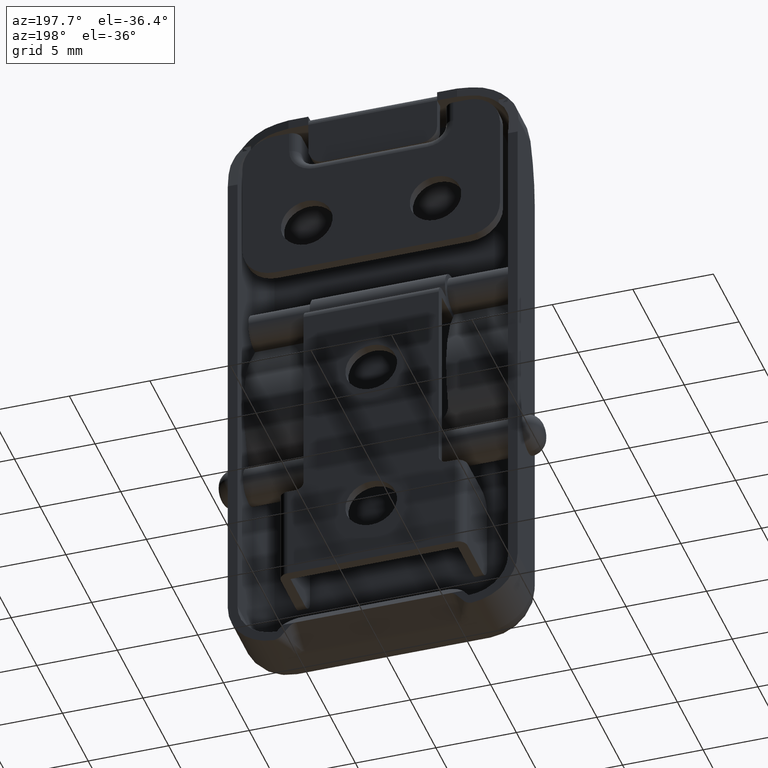
[diagram: clean part render]
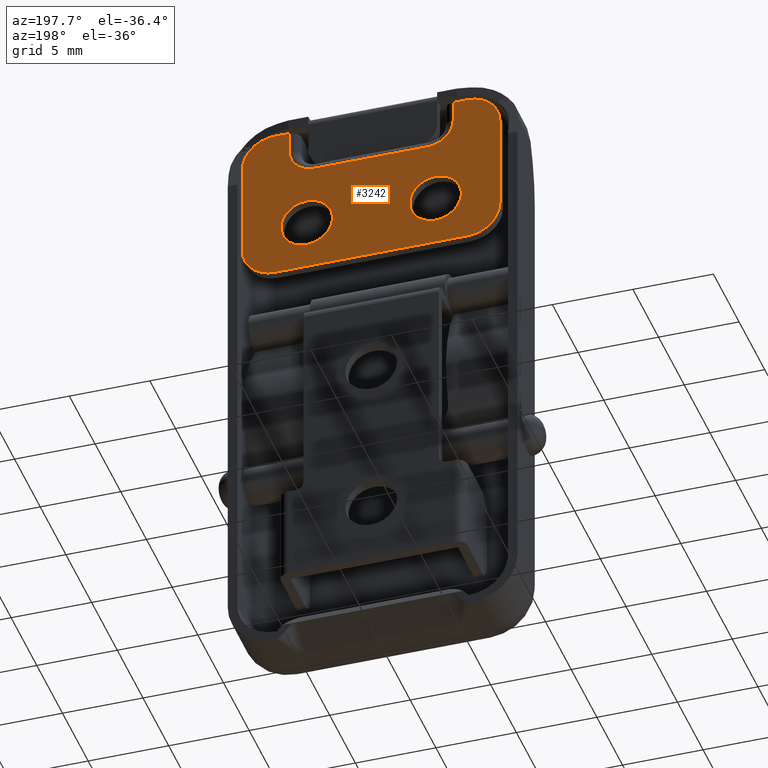
[diagram: same view with one face highlighted and labeled with its STEP entity id]
A machine part, auxiliary view. The second image highlights one B-rep face of the part: STEP entity #3242.
In plain terms, the highlighted planar face has unit normal (0, 1, 0).
Its self-contained STEP definition (entity closure, byte-faithful):
#69 = CARTESIAN_POINT ( 'NONE',  ( 5.100000999999910100, 2.600000000000134600, 12.30695863584754000 ) ) ;
#73 = PLANE ( 'NONE',  #3476 ) ;
#87 = CARTESIAN_POINT ( 'NONE',  ( 9.999999086574009500E-007, 2.600000000000134600, 12.30695863584754000 ) ) ;
#154 = VERTEX_POINT ( 'NONE', #5517 ) ;
#234 = DIRECTION ( 'NONE',  ( 1.000000000000000000, 0.0000000000000000000, 0.0000000000000000000 ) ) ;
#246 = DIRECTION ( 'NONE',  ( -0.0000000000000000000, -1.000000000000000000, -0.0000000000000000000 ) ) ;
#338 = EDGE_LOOP ( 'NONE', ( #664, #3043, #3142, #359, #2130, #1480, #1949, #3622, #1924, #2792, #1191, #929, #2126, #2972 ) ) ;
#359 = ORIENTED_EDGE ( 'NONE', *, *, #4026, .T. ) ;
#378 = CIRCLE ( 'NONE', #2049, 1.599999999999999900 ) ;
#420 = DIRECTION ( 'NONE',  ( 0.0000000000000000000, 0.0000000000000000000, 1.000000000000000000 ) ) ;
#452 = FACE_BOUND ( 'NONE', #2769, .T. ) ;
#460 = VECTOR ( 'NONE', #3025, 1000.000000000000000 ) ;
#472 = LINE ( 'NONE', #3707, #1628 ) ;
#483 = VERTEX_POINT ( 'NONE', #617 ) ;
#559 = VERTEX_POINT ( 'NONE', #1184 ) ;
#565 = VERTEX_POINT ( 'NONE', #5624 ) ;
#617 = CARTESIAN_POINT ( 'NONE',  ( -5.999999000000089600, 2.600000000000164800, 2.306958635847545100 ) ) ;
#635 = EDGE_CURVE ( 'NONE', #2367, #5051, #472, .T. ) ;
#653 = CARTESIAN_POINT ( 'NONE',  ( 5.100000999999910100, 2.600000000000134600, 11.00695863585086100 ) ) ;
#655 = CIRCLE ( 'NONE', #2022, 1.600000000000000800 ) ;
#664 = ORIENTED_EDGE ( 'NONE', *, *, #635, .F. ) ;
#673 = CIRCLE ( 'NONE', #5569, 2.000000000000000000 ) ;
#706 = DIRECTION ( 'NONE',  ( 1.000000000000000000, -0.0000000000000000000, -0.0000000000000000000 ) ) ;
#723 = CARTESIAN_POINT ( 'NONE',  ( 9.999999086574009500E-007, 2.600000000000164800, 2.306958635847545100 ) ) ;
#730 = CARTESIAN_POINT ( 'NONE',  ( 3.500000999999910000, 2.600000000000134600, 11.00695863585086100 ) ) ;
#781 = VERTEX_POINT ( 'NONE', #2172 ) ;
#929 = ORIENTED_EDGE ( 'NONE', *, *, #1084, .T. ) ;
#973 = EDGE_CURVE ( 'NONE', #3558, #154, #5868, .T. ) ;
#1084 = EDGE_CURVE ( 'NONE', #1896, #1460, #3924, .T. ) ;
#1181 = EDGE_CURVE ( 'NONE', #483, #1907, #2311, .T. ) ;
#1184 = CARTESIAN_POINT ( 'NONE',  ( -7.999999000000091300, 2.600000000000164800, 10.30695863584754000 ) ) ;
#1189 = CARTESIAN_POINT ( 'NONE',  ( 9.999999086574009500E-007, 2.600000000000134600, 12.30695863584754000 ) ) ;
#1191 = ORIENTED_EDGE ( 'NONE', *, *, #5925, .T. ) ;
#1227 = DIRECTION ( 'NONE',  ( 0.0000000000000000000, 0.0000000000000000000, 1.000000000000000000 ) ) ;
#1249 = EDGE_LOOP ( 'NONE', ( #3525, #3606 ) ) ;
#1300 = LINE ( 'NONE', #5656, #1454 ) ;
#1302 = CARTESIAN_POINT ( 'NONE',  ( -5.999999000000089600, 2.600000000001385200, 10.30695863584754000 ) ) ;
#1338 = VERTEX_POINT ( 'NONE', #2631 ) ;
#1349 = AXIS2_PLACEMENT_3D ( 'NONE', #1302, #4746, #1805 ) ;
#1452 = DIRECTION ( 'NONE',  ( -0.0000000000000000000, -0.0000000000000000000, -1.000000000000000000 ) ) ;
#1454 = VECTOR ( 'NONE', #2209, 1000.000000000000000 ) ;
#1460 = VERTEX_POINT ( 'NONE', #69 ) ;
#1480 = ORIENTED_EDGE ( 'NONE', *, *, #6321, .T. ) ;
#1575 = EDGE_CURVE ( 'NONE', #154, #3558, #4400, .T. ) ;
#1628 = VECTOR ( 'NONE', #2708, 1000.000000000000000 ) ;
#1707 = CARTESIAN_POINT ( 'NONE',  ( 4.000000999999909500, 2.600000000001385200, 5.506958635847549700 ) ) ;
#1805 = DIRECTION ( 'NONE',  ( 0.0000000000000000000, 0.0000000000000000000, 1.000000000000000000 ) ) ;
#1896 = VERTEX_POINT ( 'NONE', #653 ) ;
#1907 = VERTEX_POINT ( 'NONE', #5571 ) ;
#1924 = ORIENTED_EDGE ( 'NONE', *, *, #4050, .T. ) ;
#1949 = ORIENTED_EDGE ( 'NONE', *, *, #2762, .T. ) ;
#2022 = AXIS2_PLACEMENT_3D ( 'NONE', #730, #4180, #1227 ) ;
#2035 = DIRECTION ( 'NONE',  ( 0.0000000000000000000, 1.000000000000000000, 0.0000000000000000000 ) ) ;
#2049 = AXIS2_PLACEMENT_3D ( 'NONE', #3181, #246, #3690 ) ;
#2126 = ORIENTED_EDGE ( 'NONE', *, *, #6213, .T. ) ;
#2130 = ORIENTED_EDGE ( 'NONE', *, *, #5395, .F. ) ;
#2137 = AXIS2_PLACEMENT_3D ( 'NONE', #1707, #5141, #2183 ) ;
#2149 = VECTOR ( 'NONE', #234, 1000.000000000000000 ) ;
#2172 = CARTESIAN_POINT ( 'NONE',  ( -5.099999000000090100, 2.600000000000134600, 11.00695863585086100 ) ) ;
#2183 = DIRECTION ( 'NONE',  ( 0.0000000000000000000, 0.0000000000000000000, 1.000000000000000000 ) ) ;
#2193 = DIRECTION ( 'NONE',  ( -0.0000000000000000000, -1.000000000000000000, -0.0000000000000000000 ) ) ;
#2209 = DIRECTION ( 'NONE',  ( 0.0000000000000000000, 0.0000000000000000000, -1.000000000000000000 ) ) ;
#2226 = CIRCLE ( 'NONE', #5165, 2.000000000000000000 ) ;
#2258 = CARTESIAN_POINT ( 'NONE',  ( -5.999999000000089600, 2.600000000000164800, 4.306958635847544200 ) ) ;
#2295 = LINE ( 'NONE', #6121, #4611 ) ;
#2311 = LINE ( 'NONE', #723, #2149 ) ;
#2367 = VERTEX_POINT ( 'NONE', #6065 ) ;
#2434 = CARTESIAN_POINT ( 'NONE',  ( 4.000000999999909500, 2.600000000001385200, 7.106958635847550300 ) ) ;
#2457 = DIRECTION ( 'NONE',  ( -0.0000000000000000000, -1.000000000000000000, -0.0000000000000000000 ) ) ;
#2497 = VECTOR ( 'NONE', #1452, 1000.000000000000000 ) ;
#2611 = VECTOR ( 'NONE', #6042, 1000.000000000000000 ) ;
#2631 = CARTESIAN_POINT ( 'NONE',  ( 4.000000999999909500, 2.600000000001385200, 3.906958635847550100 ) ) ;
#2641 = CARTESIAN_POINT ( 'NONE',  ( 6.000000999999909500, 2.600000000000164800, 4.306958635847544200 ) ) ;
#2653 = EDGE_CURVE ( 'NONE', #565, #5051, #2226, .T. ) ;
#2678 = CIRCLE ( 'NONE', #2137, 1.599999999999999900 ) ;
#2708 = DIRECTION ( 'NONE',  ( -0.0000000000000000000, -0.0000000000000000000, 1.000000000000000000 ) ) ;
#2732 = AXIS2_PLACEMENT_3D ( 'NONE', #5155, #2193, #5646 ) ;
#2754 = DIRECTION ( 'NONE',  ( 0.0000000000000000000, 0.0000000000000000000, 1.000000000000000000 ) ) ;
#2762 = EDGE_CURVE ( 'NONE', #6103, #4996, #4392, .T. ) ;
#2769 = EDGE_LOOP ( 'NONE', ( #3091, #5269 ) ) ;
#2781 = CARTESIAN_POINT ( 'NONE',  ( -3.499999000000090500, 2.600000000000134600, 11.00695863585086100 ) ) ;
#2792 = ORIENTED_EDGE ( 'NONE', *, *, #3405, .T. ) ;
#2860 = EDGE_CURVE ( 'NONE', #4996, #781, #1300, .T. ) ;
#2912 = CARTESIAN_POINT ( 'NONE',  ( -7.999999000000091300, 2.600000000000164800, 12.50695863584753900 ) ) ;
#2972 = ORIENTED_EDGE ( 'NONE', *, *, #2653, .T. ) ;
#3025 = DIRECTION ( 'NONE',  ( 1.000000000000000000, -0.0000000000000000000, -0.0000000000000000000 ) ) ;
#3043 = ORIENTED_EDGE ( 'NONE', *, *, #4410, .T. ) ;
#3061 = CARTESIAN_POINT ( 'NONE',  ( 5.100000999999910100, 2.600000000000134600, 0.5069586358475459700 ) ) ;
#3091 = ORIENTED_EDGE ( 'NONE', *, *, #1575, .T. ) ;
#3128 = DIRECTION ( 'NONE',  ( 0.0000000000000000000, 0.0000000000000000000, 1.000000000000000000 ) ) ;
#3142 = ORIENTED_EDGE ( 'NONE', *, *, #1181, .F. ) ;
#3181 = CARTESIAN_POINT ( 'NONE',  ( 4.000000999999909500, 2.600000000001385200, 5.506958635847549700 ) ) ;
#3193 = LINE ( 'NONE', #1189, #4208 ) ;
#3242 = ADVANCED_FACE ( 'NONE', ( #452, #4382, #5529 ), #73, .T. ) ;
#3268 = DIRECTION ( 'NONE',  ( 0.0000000000000000000, 0.0000000000000000000, 1.000000000000000000 ) ) ;
#3363 = DIRECTION ( 'NONE',  ( 0.0000000000000000000, 1.000000000000000000, 0.0000000000000000000 ) ) ;
#3405 = EDGE_CURVE ( 'NONE', #3868, #5128, #2295, .T. ) ;
#3476 = AXIS2_PLACEMENT_3D ( 'NONE', #4504, #2035, #5493 ) ;
#3483 = AXIS2_PLACEMENT_3D ( 'NONE', #5412, #2457, #5903 ) ;
#3497 = CARTESIAN_POINT ( 'NONE',  ( -5.099999000000090100, 2.600000000000134600, 12.30695863584754000 ) ) ;
#3525 = ORIENTED_EDGE ( 'NONE', *, *, #4436, .T. ) ;
#3548 = VERTEX_POINT ( 'NONE', #3795 ) ;
#3558 = VERTEX_POINT ( 'NONE', #6231 ) ;
#3606 = ORIENTED_EDGE ( 'NONE', *, *, #3968, .T. ) ;
#3617 = CARTESIAN_POINT ( 'NONE',  ( 3.500000999999910000, 2.600000000000134600, 9.406958635850870100 ) ) ;
#3622 = ORIENTED_EDGE ( 'NONE', *, *, #2860, .T. ) ;
#3690 = DIRECTION ( 'NONE',  ( 0.0000000000000000000, 0.0000000000000000000, 1.000000000000000000 ) ) ;
#3707 = CARTESIAN_POINT ( 'NONE',  ( 8.000000999999910400, 2.600000000000164800, 2.506958635847545300 ) ) ;
#3714 = AXIS2_PLACEMENT_3D ( 'NONE', #2258, #5719, #2754 ) ;
#3741 = CIRCLE ( 'NONE', #1349, 2.000000000000000000 ) ;
#3795 = CARTESIAN_POINT ( 'NONE',  ( -7.999999000000091300, 2.600000000000164800, 4.306958635847544200 ) ) ;
#3841 = CIRCLE ( 'NONE', #3714, 2.000000000000000000 ) ;
#3868 = VERTEX_POINT ( 'NONE', #6304 ) ;
#3882 = VERTEX_POINT ( 'NONE', #2434 ) ;
#3924 = LINE ( 'NONE', #3061, #2611 ) ;
#3968 = EDGE_CURVE ( 'NONE', #3882, #1338, #378, .T. ) ;
#3972 = LINE ( 'NONE', #2912, #2497 ) ;
#3998 = CIRCLE ( 'NONE', #4706, 1.600000000000000800 ) ;
#4026 = EDGE_CURVE ( 'NONE', #483, #3548, #3841, .T. ) ;
#4050 = EDGE_CURVE ( 'NONE', #781, #3868, #3998, .T. ) ;
#4149 = CARTESIAN_POINT ( 'NONE',  ( -5.999999000000089600, 2.600000000000134600, 12.30695863584754000 ) ) ;
#4180 = DIRECTION ( 'NONE',  ( -0.0000000000000000000, -1.000000000000000000, -0.0000000000000000000 ) ) ;
#4208 = VECTOR ( 'NONE', #706, 1000.000000000000000 ) ;
#4382 = FACE_BOUND ( 'NONE', #1249, .T. ) ;
#4392 = LINE ( 'NONE', #87, #460 ) ;
#4400 = CIRCLE ( 'NONE', #3483, 1.599999999999999900 ) ;
#4410 = EDGE_CURVE ( 'NONE', #2367, #1907, #673, .T. ) ;
#4436 = EDGE_CURVE ( 'NONE', #1338, #3882, #2678, .T. ) ;
#4504 = CARTESIAN_POINT ( 'NONE',  ( 9.999999086574009500E-007, 2.600000000000134600, 0.5069586358475459700 ) ) ;
#4611 = VECTOR ( 'NONE', #5150, 1000.000000000000000 ) ;
#4706 = AXIS2_PLACEMENT_3D ( 'NONE', #2781, #6232, #3268 ) ;
#4746 = DIRECTION ( 'NONE',  ( 0.0000000000000000000, 1.000000000000000000, 0.0000000000000000000 ) ) ;
#4996 = VERTEX_POINT ( 'NONE', #3497 ) ;
#5051 = VERTEX_POINT ( 'NONE', #6005 ) ;
#5128 = VERTEX_POINT ( 'NONE', #3617 ) ;
#5141 = DIRECTION ( 'NONE',  ( -0.0000000000000000000, -1.000000000000000000, -0.0000000000000000000 ) ) ;
#5150 = DIRECTION ( 'NONE',  ( 1.000000000000000000, 0.0000000000000000000, 0.0000000000000000000 ) ) ;
#5155 = CARTESIAN_POINT ( 'NONE',  ( -3.999999000000090000, 2.600000000001385200, 5.506958635847549700 ) ) ;
#5165 = AXIS2_PLACEMENT_3D ( 'NONE', #6330, #3363, #420 ) ;
#5269 = ORIENTED_EDGE ( 'NONE', *, *, #973, .T. ) ;
#5395 = EDGE_CURVE ( 'NONE', #559, #3548, #3972, .T. ) ;
#5412 = CARTESIAN_POINT ( 'NONE',  ( -3.999999000000090000, 2.600000000001385200, 5.506958635847549700 ) ) ;
#5493 = DIRECTION ( 'NONE',  ( 0.0000000000000000000, 0.0000000000000000000, 1.000000000000000000 ) ) ;
#5517 = CARTESIAN_POINT ( 'NONE',  ( -3.999999000000090000, 2.600000000001385200, 3.906958635847550100 ) ) ;
#5529 = FACE_OUTER_BOUND ( 'NONE', #338, .T. ) ;
#5569 = AXIS2_PLACEMENT_3D ( 'NONE', #2641, #6102, #3128 ) ;
#5571 = CARTESIAN_POINT ( 'NONE',  ( 6.000000999999909500, 2.600000000000164800, 2.306958635847545100 ) ) ;
#5624 = CARTESIAN_POINT ( 'NONE',  ( 6.000000999999909500, 2.600000000000134600, 12.30695863584754000 ) ) ;
#5646 = DIRECTION ( 'NONE',  ( 0.0000000000000000000, 0.0000000000000000000, 1.000000000000000000 ) ) ;
#5656 = CARTESIAN_POINT ( 'NONE',  ( -5.099999000000090100, 2.600000000000134600, 0.5069586358475459700 ) ) ;
#5719 = DIRECTION ( 'NONE',  ( 0.0000000000000000000, 1.000000000000000000, 0.0000000000000000000 ) ) ;
#5868 = CIRCLE ( 'NONE', #2732, 1.599999999999999900 ) ;
#5903 = DIRECTION ( 'NONE',  ( 0.0000000000000000000, 0.0000000000000000000, 1.000000000000000000 ) ) ;
#5925 = EDGE_CURVE ( 'NONE', #5128, #1896, #655, .T. ) ;
#6005 = CARTESIAN_POINT ( 'NONE',  ( 8.000000999999910400, 2.600000000000164800, 10.30695863584754000 ) ) ;
#6042 = DIRECTION ( 'NONE',  ( 0.0000000000000000000, 0.0000000000000000000, 1.000000000000000000 ) ) ;
#6065 = CARTESIAN_POINT ( 'NONE',  ( 8.000000999999910400, 2.600000000000164800, 4.306958635847544200 ) ) ;
#6102 = DIRECTION ( 'NONE',  ( 0.0000000000000000000, 1.000000000000000000, 0.0000000000000000000 ) ) ;
#6103 = VERTEX_POINT ( 'NONE', #4149 ) ;
#6121 = CARTESIAN_POINT ( 'NONE',  ( 9.999999086574009500E-007, 2.600000000000134600, 9.406958635850870100 ) ) ;
#6213 = EDGE_CURVE ( 'NONE', #1460, #565, #3193, .T. ) ;
#6231 = CARTESIAN_POINT ( 'NONE',  ( -3.999999000000090000, 2.600000000001385200, 7.106958635847550300 ) ) ;
#6232 = DIRECTION ( 'NONE',  ( -0.0000000000000000000, -1.000000000000000000, -0.0000000000000000000 ) ) ;
#6304 = CARTESIAN_POINT ( 'NONE',  ( -3.499999000000090500, 2.600000000000134600, 9.406958635850870100 ) ) ;
#6321 = EDGE_CURVE ( 'NONE', #559, #6103, #3741, .T. ) ;
#6330 = CARTESIAN_POINT ( 'NONE',  ( 6.000000999999909500, 2.600000000000164800, 10.30695863584754000 ) ) ;